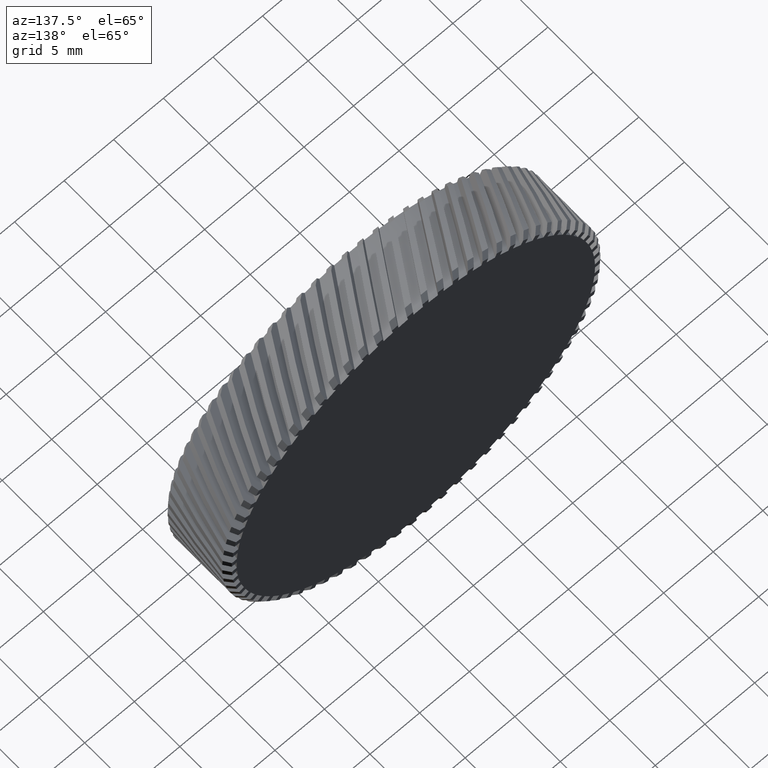
[diagram: clean part render]
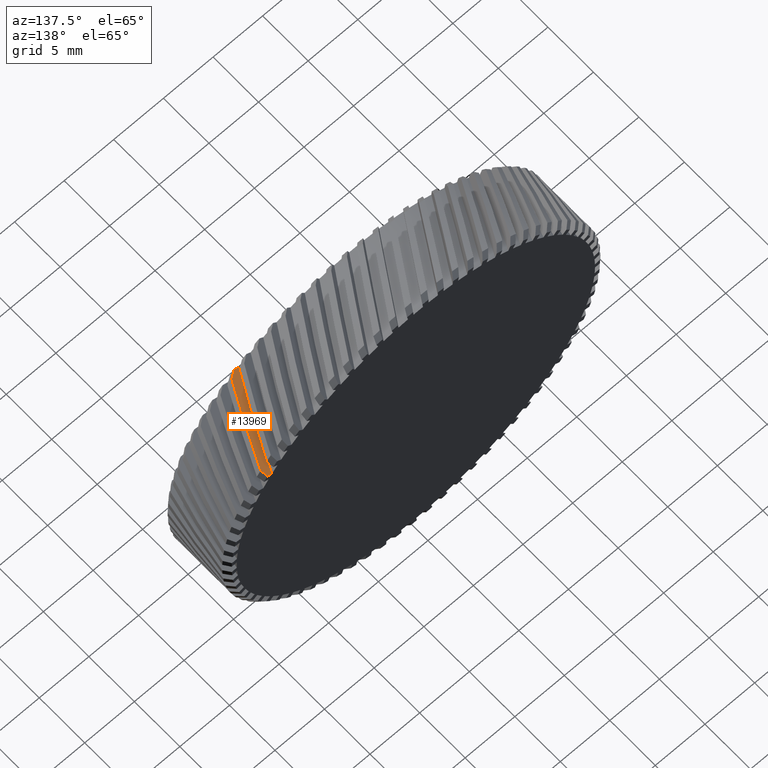
[diagram: same view with one face highlighted and labeled with its STEP entity id]
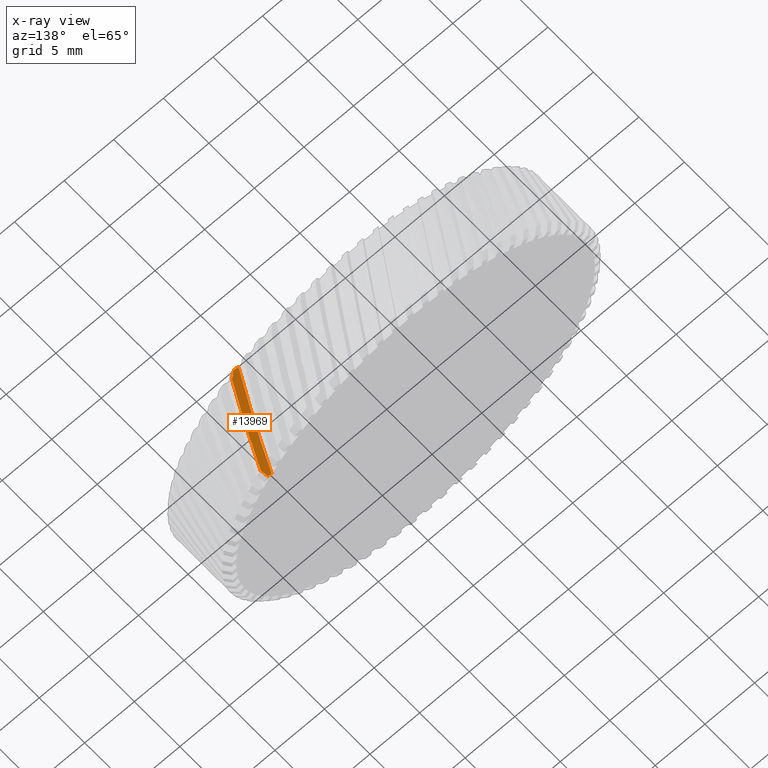
[diagram: x-ray of the same camera — body ghosted, the highlighted face saturated]
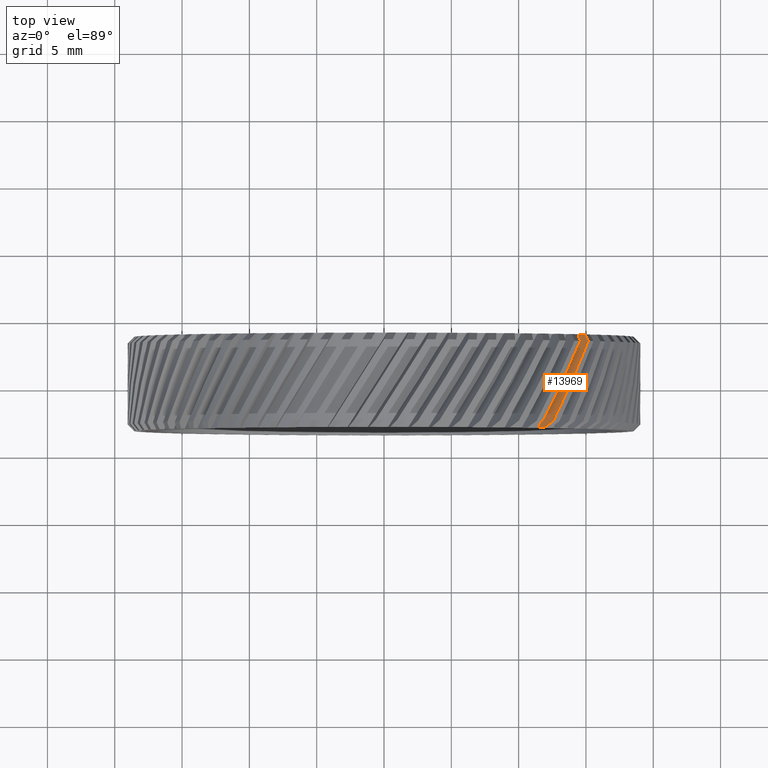
[diagram: same view with one face highlighted and labeled with its STEP entity id]
A machine part, auxiliary view. The second image highlights one B-rep face of the part: STEP entity #13969.
The next image is the same camera in x-ray: the body ghosted, the highlighted face saturated — about 0% of this face is hidden behind the body in this view.
A second angle (top view) of the same face is appended — the face is thin or edge-on in the first view.
In plain terms, the highlighted planar face has unit normal (0.4545, -0.5297, -0.7161).
Its self-contained STEP definition (entity closure, byte-faithful):
#229 = CARTESIAN_POINT ( 'NONE',  ( 12.12175348537903800, -13.16513320924228700, 14.26073555518171100 ) ) ;
#317 = EDGE_CURVE ( 'NONE', #8974, #1001, #12703, .T. ) ;
#488 = CARTESIAN_POINT ( 'NONE',  ( 14.40624527240625200, -8.864835964673950700, 12.52947310042089600 ) ) ;
#546 = CARTESIAN_POINT ( 'NONE',  ( 14.51762233517190700, -6.330884482231915900, 10.72572336643631500 ) ) ;
#1001 = VERTEX_POINT ( 'NONE', #4050 ) ;
#1266 =( BOUNDED_CURVE ( )  B_SPLINE_CURVE ( 3, ( #4185, #15704, #3124, #546 ),
 .UNSPECIFIED., .F., .F. ) 
 B_SPLINE_CURVE_WITH_KNOTS ( ( 4, 4 ),
 ( 4.394070920343705400, 4.641576534375216700 ),
 .UNSPECIFIED. ) 
 CURVE ( )  GEOMETRIC_REPRESENTATION_ITEM ( )  RATIONAL_B_SPLINE_CURVE ( ( 1.000000000000000000, 0.9949015926433100200, 0.9949015926433100200, 1.000000000000000000 ) ) 
 REPRESENTATION_ITEM ( '' )  );
#1492 = CARTESIAN_POINT ( 'NONE',  ( 15.09852693974138500, -6.663942285180915800, 11.34074841420244400 ) ) ;
#1691 = CARTESIAN_POINT ( 'NONE',  ( 15.17673406017461300, -6.830884482231923000, 11.51387177567720400 ) ) ;
#1933 = EDGE_CURVE ( 'NONE', #8221, #6821, #7951, .T. ) ;
#2277 = CARTESIAN_POINT ( 'NONE',  ( 14.94081827056554300, -6.330884482231919500, 10.99429167367936300 ) ) ;
#2729 = CARTESIAN_POINT ( 'NONE',  ( 14.94081827056554300, -6.330884482231919500, 10.99429167367936300 ) ) ;
#3064 = EDGE_LOOP ( 'NONE', ( #10749, #3324, #14775, #14347, #3716, #15780 ) ) ;
#3124 = CARTESIAN_POINT ( 'NONE',  ( 13.63046391366133400, -8.715286743520588100, 11.92652171587548100 ) ) ;
#3197 = CARTESIAN_POINT ( 'NONE',  ( -3.026939441155435300, -13.33088448223191600, 4.769693346655405900 ) ) ;
#3324 = ORIENTED_EDGE ( 'NONE', *, *, #317, .F. ) ;
#3418 = VERTEX_POINT ( 'NONE', #9483 ) ;
#3716 = ORIENTED_EDGE ( 'NONE', *, *, #15381, .T. ) ;
#4050 = CARTESIAN_POINT ( 'NONE',  ( 11.44756414960500600, -13.33088448223191600, 13.95549264772399700 ) ) ;
#4185 = CARTESIAN_POINT ( 'NONE',  ( 11.44756414960500600, -13.33088448223191600, 13.95549264772399700 ) ) ;
#4235 = CARTESIAN_POINT ( 'NONE',  ( 12.58076754217771900, -12.83088448223190900, 14.30478199937657100 ) ) ;
#4838 = VECTOR ( 'NONE', #13210, 1000.000000000000100 ) ;
#5281 = CARTESIAN_POINT ( 'NONE',  ( 11.89140948614738000, -13.33088448223191600, 14.23716546341876400 ) ) ;
#5377 = CARTESIAN_POINT ( 'NONE',  ( 12.58076754217771900, -12.83088448223190900, 14.30478199937657100 ) ) ;
#6090 = DIRECTION ( 'NONE',  ( 0.4544676178499347200, -0.5297378573991637900, -0.7161263762520893000 ) ) ;
#6201 = DIRECTION ( 'NONE',  ( 0.2838477383092336000, 0.8481614247524720300, -0.4472724661977188200 ) ) ;
#6821 = VERTEX_POINT ( 'NONE', #11319 ) ;
#7519 = EDGE_CURVE ( 'NONE', #1001, #3418, #1266, .T. ) ;
#7798 = LINE ( 'NONE', #8097, #4838 ) ;
#7800 = CARTESIAN_POINT ( 'NONE',  ( 15.01989765992009400, -6.497268733090064300, 11.16755586610434600 ) ) ;
#7951 =( BOUNDED_CURVE ( )  B_SPLINE_CURVE ( 3, ( #1691, #488, #9375, #4235 ),
 .UNSPECIFIED., .F., .F. ) 
 B_SPLINE_CURVE_WITH_KNOTS ( ( 4, 4 ),
 ( 1.654325588228708900, 1.854744341459009500 ),
 .UNSPECIFIED. ) 
 CURVE ( )  GEOMETRIC_REPRESENTATION_ITEM ( )  RATIONAL_B_SPLINE_CURVE ( ( 1.000000000000000000, 0.9966554937903625600, 0.9966554937903625600, 1.000000000000000000 ) ) 
 REPRESENTATION_ITEM ( '' )  );
#7957 = CARTESIAN_POINT ( 'NONE',  ( 12.35153256349617800, -12.99844083525084300, 14.28325097949135100 ) ) ;
#8097 = CARTESIAN_POINT ( 'NONE',  ( -0.6843026385626939100, -6.330884482231919500, 1.078288418286071900 ) ) ;
#8221 = VERTEX_POINT ( 'NONE', #11254 ) ;
#8359 = VECTOR ( 'NONE', #9457, 1000.000000000000100 ) ;
#8974 = VERTEX_POINT ( 'NONE', #5281 ) ;
#9375 = CARTESIAN_POINT ( 'NONE',  ( 13.53801931262676900, -10.87154742360930500, 13.46289835488045800 ) ) ;
#9457 = DIRECTION ( 'NONE',  ( -0.8443279255020163000, 0.0000000000000000000, -0.5358267949789946600 ) ) ;
#9483 = CARTESIAN_POINT ( 'NONE',  ( 14.51762233517190700, -6.330884482231915900, 10.72572336643631500 ) ) ;
#10334 = CARTESIAN_POINT ( 'NONE',  ( 15.17673406017461300, -6.830884482231923000, 11.51387177567720400 ) ) ;
#10403 = EDGE_CURVE ( 'NONE', #8974, #6821, #11329, .T. ) ;
#10500 = CARTESIAN_POINT ( 'NONE',  ( 11.89140948614738000, -13.33088448223191600, 14.23716546341876400 ) ) ;
#10746 = FACE_OUTER_BOUND ( 'NONE', #3064, .T. ) ;
#10749 = ORIENTED_EDGE ( 'NONE', *, *, #7519, .F. ) ;
#11254 = CARTESIAN_POINT ( 'NONE',  ( 15.17673406017461300, -6.830884482231923000, 11.51387177567720400 ) ) ;
#11319 = CARTESIAN_POINT ( 'NONE',  ( 12.58076754217771900, -12.83088448223190900, 14.30478199937657100 ) ) ;
#11329 = B_SPLINE_CURVE_WITH_KNOTS ( 'NONE', 3,
 ( #10500, #229, #7957, #5377 ),
 .UNSPECIFIED., .F., .F.,
 ( 4, 4 ),
 ( 3.435934279783741500E-007, 0.0008546190322349630000 ),
 .UNSPECIFIED. ) ;
#11906 = B_SPLINE_CURVE_WITH_KNOTS ( 'NONE', 3,
 ( #10334, #1492, #7800, #2729 ),
 .UNSPECIFIED., .F., .F.,
 ( 4, 4 ),
 ( 3.029767270003721800E-007, 0.0007589990569718916200 ),
 .UNSPECIFIED. ) ;
#12136 = VERTEX_POINT ( 'NONE', #2277 ) ;
#12365 = EDGE_CURVE ( 'NONE', #3418, #12136, #7798, .T. ) ;
#12703 = LINE ( 'NONE', #3197, #8359 ) ;
#13210 = DIRECTION ( 'NONE',  ( 0.8443279255020163000, 0.0000000000000000000, 0.5358267949789946600 ) ) ;
#13619 = CARTESIAN_POINT ( 'NONE',  ( -15.72171721445897100, -3.199738791282192200, -10.78093737214650700 ) ) ;
#13728 = PLANE ( 'NONE',  #16279 ) ;
#13969 = ADVANCED_FACE ( 'NONE', ( #10746 ), #13728, .F. ) ;
#14347 = ORIENTED_EDGE ( 'NONE', *, *, #1933, .F. ) ;
#14775 = ORIENTED_EDGE ( 'NONE', *, *, #10403, .T. ) ;
#15381 = EDGE_CURVE ( 'NONE', #8221, #12136, #11906, .T. ) ;
#15704 = CARTESIAN_POINT ( 'NONE',  ( 12.60186697896007900, -11.06057732360097900, 13.00862849748077100 ) ) ;
#15780 = ORIENTED_EDGE ( 'NONE', *, *, #12365, .F. ) ;
#16279 = AXIS2_PLACEMENT_3D ( 'NONE', #13619, #6090, #6201 ) ;